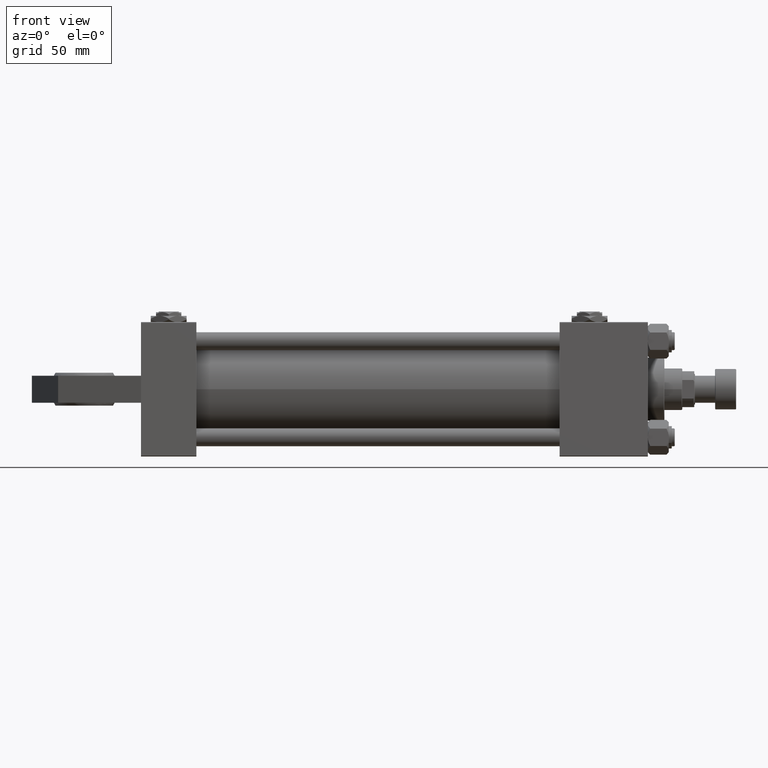
[diagram: clean part render]
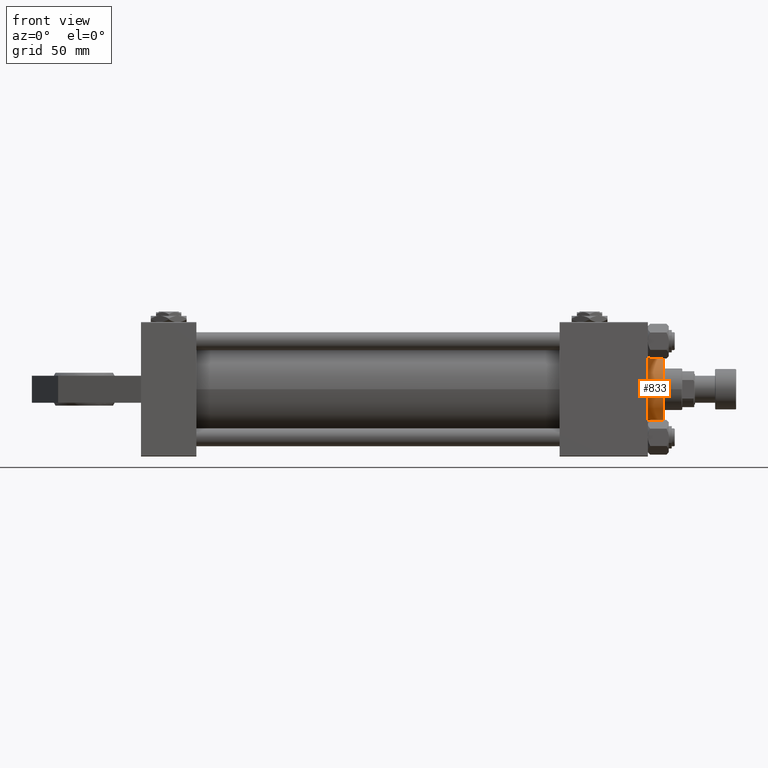
[diagram: same view with one face highlighted and labeled with its STEP entity id]
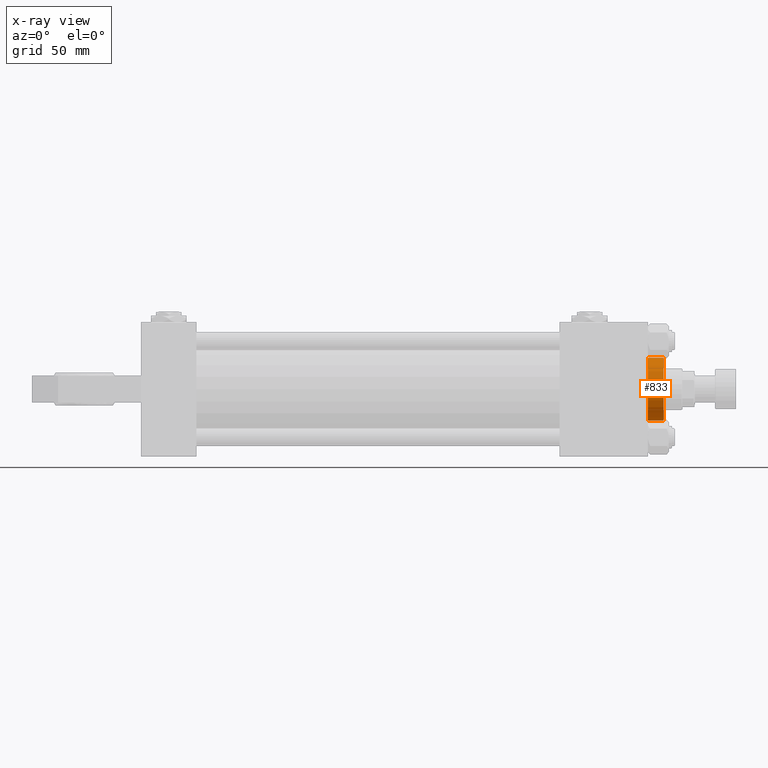
[diagram: x-ray of the same camera — body ghosted, the highlighted face saturated]
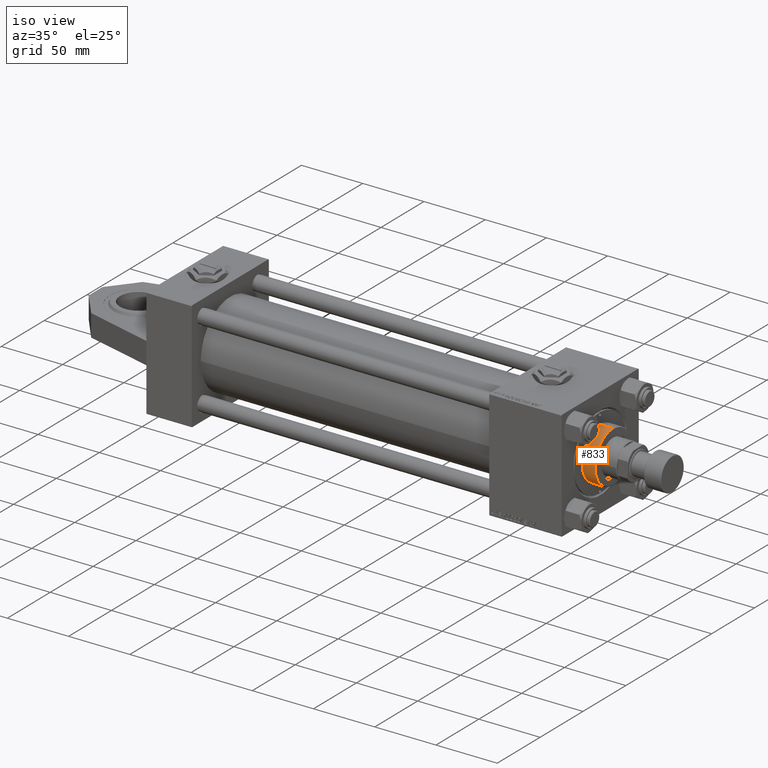
[diagram: same view with one face highlighted and labeled with its STEP entity id]
A machine part, front view. The second image highlights one B-rep face of the part: STEP entity #833.
The next image is the same camera in x-ray: the body ghosted, the highlighted face saturated — about 0% of this face is hidden behind the body in this view.
A second angle (iso view) of the same face is appended — the face is thin or edge-on in the first view.
In plain terms, the highlighted cylindrical surface (edge-blend (fillet) strip) has radius 21 mm, axis along (-1, -0, 0).
Its self-contained STEP definition (entity closure, byte-faithful):
#769 = CARTESIAN_POINT ( 'NONE',  ( 21.00000000000000000, 2.571758278209441661E-15, 37.69999999999999574 ) ) ;
#833 = ADVANCED_FACE ( 'NONE', ( #45283 ), #1577, .T. ) ;
#874 = VERTEX_POINT ( 'NONE', #1313 ) ;
#1313 = CARTESIAN_POINT ( 'NONE',  ( 21.00000000000000000, 2.571758278209441661E-15, 26.69999999999999929 ) ) ;
#1577 = CYLINDRICAL_SURFACE ( 'NONE', #38748, 21.00000000000000000 ) ;
#4041 = EDGE_CURVE ( 'NONE', #19435, #48726, #42644, .T. ) ;
#7427 = CARTESIAN_POINT ( 'NONE',  ( 21.00000000000000000, 2.571758278209441661E-15, 37.19999999999999574 ) ) ;
#8829 = EDGE_CURVE ( 'NONE', #16702, #874, #29022, .T. ) ;
#10327 = DIRECTION ( 'NONE',  ( 0.000000000000000000, 0.000000000000000000, 1.000000000000000000 ) ) ;
#12978 = EDGE_CURVE ( 'NONE', #48726, #874, #23686, .T. ) ;
#13048 = CARTESIAN_POINT ( 'NONE',  ( 0.000000000000000000, 0.000000000000000000, 37.69999999999999574 ) ) ;
#14120 = ORIENTED_EDGE ( 'NONE', *, *, #4041, .T. ) ;
#14924 = CARTESIAN_POINT ( 'NONE',  ( 0.000000000000000000, 0.000000000000000000, 37.19999999999999574 ) ) ;
#16702 = VERTEX_POINT ( 'NONE', #7427 ) ;
#17317 = DIRECTION ( 'NONE',  ( -1.000000000000000000, 0.000000000000000000, 0.000000000000000000 ) ) ;
#18125 = DIRECTION ( 'NONE',  ( -0.000000000000000000, -0.000000000000000000, -1.000000000000000000 ) ) ;
#19435 = VERTEX_POINT ( 'NONE', #29381 ) ;
#20439 = EDGE_LOOP ( 'NONE', ( #42079, #39132, #14120, #31896 ) ) ;
#22373 = CARTESIAN_POINT ( 'NONE',  ( -21.00000000000000000, 0.000000000000000000, 37.69999999999999574 ) ) ;
#23003 = CIRCLE ( 'NONE', #44136, 21.00000000000000000 ) ;
#23686 = CIRCLE ( 'NONE', #29622, 21.00000000000000000 ) ;
#26585 = DIRECTION ( 'NONE',  ( 1.000000000000000000, 0.000000000000000000, 0.000000000000000000 ) ) ;
#26847 = CARTESIAN_POINT ( 'NONE',  ( 0.000000000000000000, 0.000000000000000000, 26.69999999999999929 ) ) ;
#29022 = LINE ( 'NONE', #769, #49031 ) ;
#29381 = CARTESIAN_POINT ( 'NONE',  ( -21.00000000000000000, 0.000000000000000000, 37.19999999999999574 ) ) ;
#29561 = DIRECTION ( 'NONE',  ( -0.000000000000000000, -0.000000000000000000, -1.000000000000000000 ) ) ;
#29622 = AXIS2_PLACEMENT_3D ( 'NONE', #26847, #10327, #26585 ) ;
#31896 = ORIENTED_EDGE ( 'NONE', *, *, #12978, .T. ) ;
#33021 = DIRECTION ( 'NONE',  ( -0.000000000000000000, -0.000000000000000000, -1.000000000000000000 ) ) ;
#33230 = EDGE_CURVE ( 'NONE', #16702, #19435, #23003, .T. ) ;
#38748 = AXIS2_PLACEMENT_3D ( 'NONE', #13048, #29561, #17317 ) ;
#38921 = DIRECTION ( 'NONE',  ( 0.000000000000000000, 0.000000000000000000, -1.000000000000000000 ) ) ;
#39132 = ORIENTED_EDGE ( 'NONE', *, *, #33230, .T. ) ;
#42079 = ORIENTED_EDGE ( 'NONE', *, *, #8829, .F. ) ;
#42644 = LINE ( 'NONE', #22373, #52411 ) ;
#44136 = AXIS2_PLACEMENT_3D ( 'NONE', #14924, #38921, #51170 ) ;
#45283 = FACE_OUTER_BOUND ( 'NONE', #20439, .T. ) ;
#47490 = CARTESIAN_POINT ( 'NONE',  ( -21.00000000000000000, 0.000000000000000000, 26.69999999999999929 ) ) ;
#48726 = VERTEX_POINT ( 'NONE', #47490 ) ;
#49031 = VECTOR ( 'NONE', #33021, 1000.000000000000000 ) ;
#51170 = DIRECTION ( 'NONE',  ( 1.000000000000000000, 0.000000000000000000, 0.000000000000000000 ) ) ;
#52411 = VECTOR ( 'NONE', #18125, 1000.000000000000000 ) ;